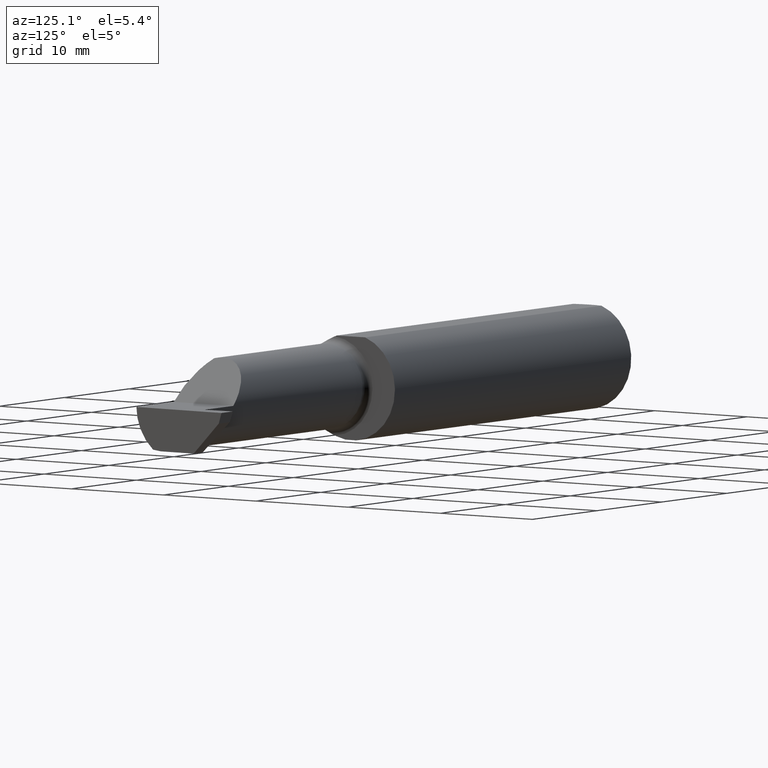
[diagram: clean part render]
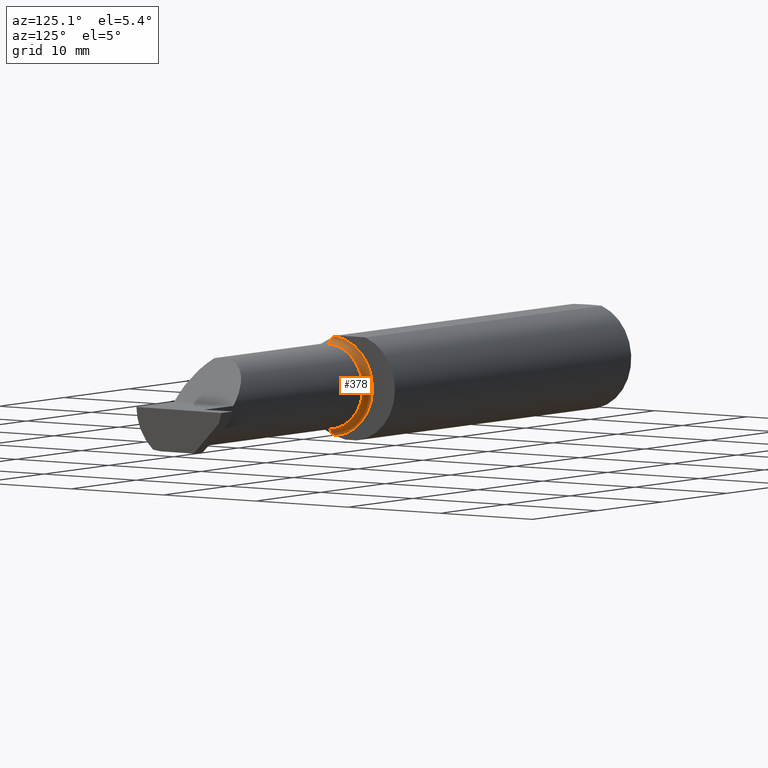
[diagram: same view with one face highlighted and labeled with its STEP entity id]
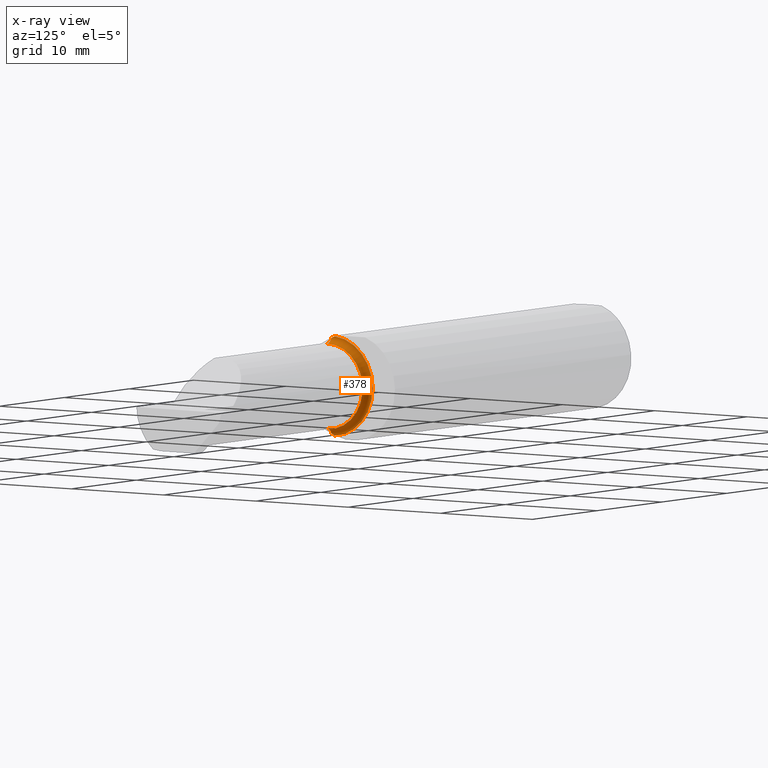
[diagram: x-ray of the same camera — body ghosted, the highlighted face saturated]
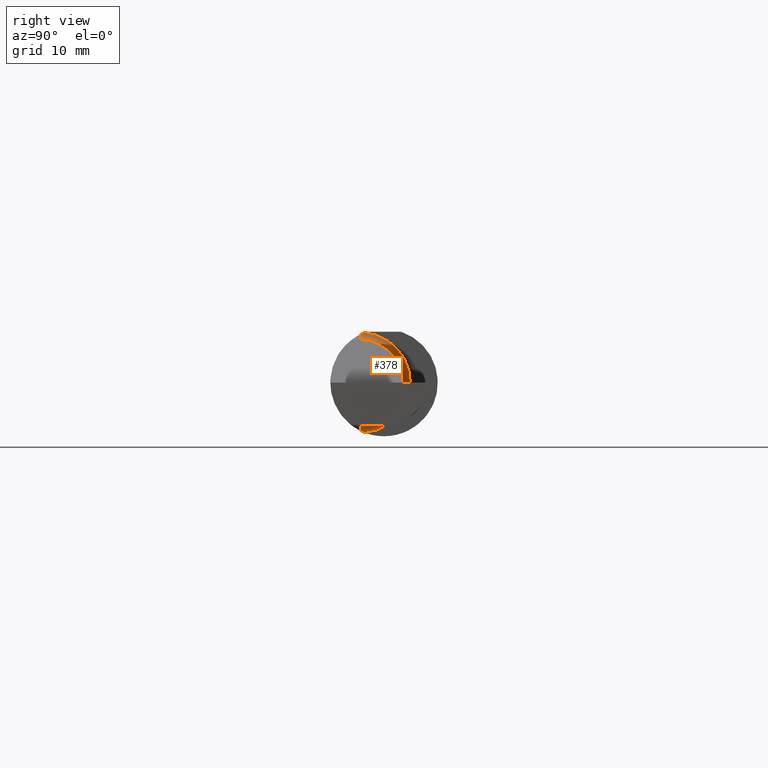
[diagram: same view with one face highlighted and labeled with its STEP entity id]
A machine part, auxiliary view. The second image highlights one B-rep face of the part: STEP entity #378.
The next image is the same camera in x-ray: the body ghosted, the highlighted face saturated — about 0% of this face is hidden behind the body in this view.
A second angle (right view) of the same face is appended — the face is thin or edge-on in the first view.
In plain terms, the highlighted toroidal blend (fillet) surface has major radius 4.445 mm and minor (blend) radius 0.635 mm.
Its self-contained STEP definition (entity closure, byte-faithful):
#6 = EDGE_CURVE ( 'NONE', #887, #637, #36, .T. ) ;
#17 = CARTESIAN_POINT ( 'NONE',  ( 1.450000000000000178, -0.06851976604679065053, -0.1743704796142198643 ) ) ;
#27 = CIRCLE ( 'NONE', #190, 0.02499999999999993894 ) ;
#35 = EDGE_CURVE ( 'NONE', #601, #697, #280, .T. ) ;
#36 = B_SPLINE_CURVE_WITH_KNOTS ( 'NONE', 3,
 ( #679, #995, #754, #195 ),
 .UNSPECIFIED., .F., .F.,
 ( 4, 4 ),
 ( 0.001278539404338873992, 0.001694873732696220705 ),
 .UNSPECIFIED. ) ;
#37 = ORIENTED_EDGE ( 'NONE', *, *, #6, .T. ) ;
#45 = CIRCLE ( 'NONE', #416, 0.02499999999999993894 ) ;
#91 = TOROIDAL_SURFACE ( 'NONE', #666, 0.1749999999999999889, 0.02499999999999993894 ) ;
#110 = CARTESIAN_POINT ( 'NONE',  ( 1.474999999999999867, -0.08334999999999996578, 0.1499999999999999944 ) ) ;
#115 = VERTEX_POINT ( 'NONE', #787 ) ;
#177 = AXIS2_PLACEMENT_3D ( 'NONE', #655, #187, #985 ) ;
#187 = DIRECTION ( 'NONE',  ( -1.000000000000000000, -0.000000000000000000, -0.000000000000000000 ) ) ;
#190 = AXIS2_PLACEMENT_3D ( 'NONE', #819, #585, #212 ) ;
#195 = CARTESIAN_POINT ( 'NONE',  ( 1.450000000000000178, -0.06851976604679065053, -0.1743704796142198643 ) ) ;
#212 = DIRECTION ( 'NONE',  ( 0.000000000000000000, 0.000000000000000000, 1.000000000000000000 ) ) ;
#280 = CIRCLE ( 'NONE', #870, 0.1499999999999999944 ) ;
#285 = EDGE_CURVE ( 'NONE', #115, #379, #717, .T. ) ;
#309 = CARTESIAN_POINT ( 'NONE',  ( 1.451062863587533558, -0.08334999999998812803, 0.1677879614275171183 ) ) ;
#327 = CARTESIAN_POINT ( 'NONE',  ( 1.450000000000000178, -0.06851976604679065053, 0.1743704796142198643 ) ) ;
#336 = CARTESIAN_POINT ( 'NONE',  ( 1.451062863587535556, -0.08334999999999989639, -0.1677879614275112619 ) ) ;
#370 = DIRECTION ( 'NONE',  ( 0.000000000000000000, 0.000000000000000000, -1.000000000000000000 ) ) ;
#378 = ADVANCED_FACE ( 'NONE', ( #941 ), #91, .F. ) ;
#379 = VERTEX_POINT ( 'NONE', #309 ) ;
#416 = AXIS2_PLACEMENT_3D ( 'NONE', #698, #611, #370 ) ;
#426 = ORIENTED_EDGE ( 'NONE', *, *, #285, .T. ) ;
#510 = EDGE_LOOP ( 'NONE', ( #1026, #37, #543, #426, #736, #594 ) ) ;
#543 = ORIENTED_EDGE ( 'NONE', *, *, #855, .F. ) ;
#564 = CARTESIAN_POINT ( 'NONE',  ( 1.450344683557281522, -0.07855153123406181936, 0.1701716388274757685 ) ) ;
#573 = CARTESIAN_POINT ( 'NONE',  ( 1.449999999999999512, -0.07360907839729495528, 0.1723706084642000758 ) ) ;
#585 = DIRECTION ( 'NONE',  ( -0.000000000000000000, 1.000000000000000000, 1.224646799147353207E-16 ) ) ;
#594 = ORIENTED_EDGE ( 'NONE', *, *, #35, .T. ) ;
#601 = VERTEX_POINT ( 'NONE', #110 ) ;
#611 = DIRECTION ( 'NONE',  ( 0.000000000000000000, -1.000000000000000000, 0.000000000000000000 ) ) ;
#617 = CARTESIAN_POINT ( 'NONE',  ( 1.474999999999999867, -0.08334999999999995191, -0.1499999999999999944 ) ) ;
#637 = VERTEX_POINT ( 'NONE', #17 ) ;
#647 = CARTESIAN_POINT ( 'NONE',  ( 1.451062863587533558, -0.08334999999998812803, 0.1677879614275171183 ) ) ;
#655 = CARTESIAN_POINT ( 'NONE',  ( 1.450000000000000178, -0.08334999999999996578, 0.000000000000000000 ) ) ;
#659 = EDGE_CURVE ( 'NONE', #887, #697, #27, .T. ) ;
#666 = AXIS2_PLACEMENT_3D ( 'NONE', #888, #1042, #711 ) ;
#672 = EDGE_CURVE ( 'NONE', #379, #601, #45, .T. ) ;
#679 = CARTESIAN_POINT ( 'NONE',  ( 1.451062863587535556, -0.08334999999999989639, -0.1677879614275112619 ) ) ;
#684 = DIRECTION ( 'NONE',  ( 0.000000000000000000, 0.000000000000000000, 1.000000000000000000 ) ) ;
#697 = VERTEX_POINT ( 'NONE', #617 ) ;
#698 = CARTESIAN_POINT ( 'NONE',  ( 1.474999999999999867, -0.08334999999999995191, 0.1749999999999999889 ) ) ;
#711 = DIRECTION ( 'NONE',  ( 0.000000000000000000, 0.000000000000000000, 1.000000000000000000 ) ) ;
#717 = B_SPLINE_CURVE_WITH_KNOTS ( 'NONE', 3,
 ( #327, #573, #564, #647 ),
 .UNSPECIFIED., .F., .F.,
 ( 4, 4 ),
 ( 4.423516731080786679E-05, 0.0004561457252213465489 ),
 .UNSPECIFIED. ) ;
#736 = ORIENTED_EDGE ( 'NONE', *, *, #672, .T. ) ;
#753 = CIRCLE ( 'NONE', #177, 0.1749999999999999889 ) ;
#754 = CARTESIAN_POINT ( 'NONE',  ( 1.450000000000000178, -0.07359296612170562746, -0.1723769398647691520 ) ) ;
#787 = CARTESIAN_POINT ( 'NONE',  ( 1.450000000000000178, -0.06851976604679065053, 0.1743704796142198643 ) ) ;
#819 = CARTESIAN_POINT ( 'NONE',  ( 1.474999999999999867, -0.08334999999999992415, -0.1749999999999999889 ) ) ;
#833 = CARTESIAN_POINT ( 'NONE',  ( 1.474999999999999867, -0.08334999999999996578, 0.000000000000000000 ) ) ;
#855 = EDGE_CURVE ( 'NONE', #115, #637, #753, .T. ) ;
#870 = AXIS2_PLACEMENT_3D ( 'NONE', #833, #920, #684 ) ;
#887 = VERTEX_POINT ( 'NONE', #336 ) ;
#888 = CARTESIAN_POINT ( 'NONE',  ( 1.474999999999999867, -0.08334999999999995191, 0.000000000000000000 ) ) ;
#920 = DIRECTION ( 'NONE',  ( -1.000000000000000000, -0.000000000000000000, -0.000000000000000000 ) ) ;
#941 = FACE_OUTER_BOUND ( 'NONE', #510, .T. ) ;
#985 = DIRECTION ( 'NONE',  ( 0.000000000000000000, 0.000000000000000000, 1.000000000000000000 ) ) ;
#995 = CARTESIAN_POINT ( 'NONE',  ( 1.450346246588685162, -0.07856197451716399882, -0.1701664510438046229 ) ) ;
#1026 = ORIENTED_EDGE ( 'NONE', *, *, #659, .F. ) ;
#1042 = DIRECTION ( 'NONE',  ( -1.000000000000000000, -0.000000000000000000, -0.000000000000000000 ) ) ;